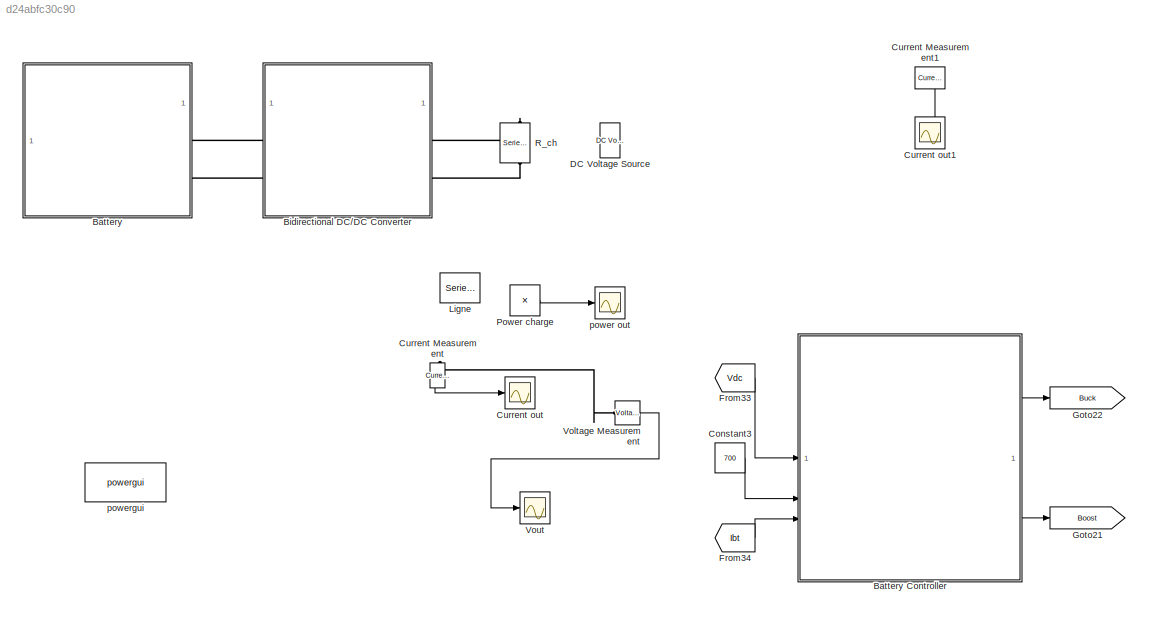
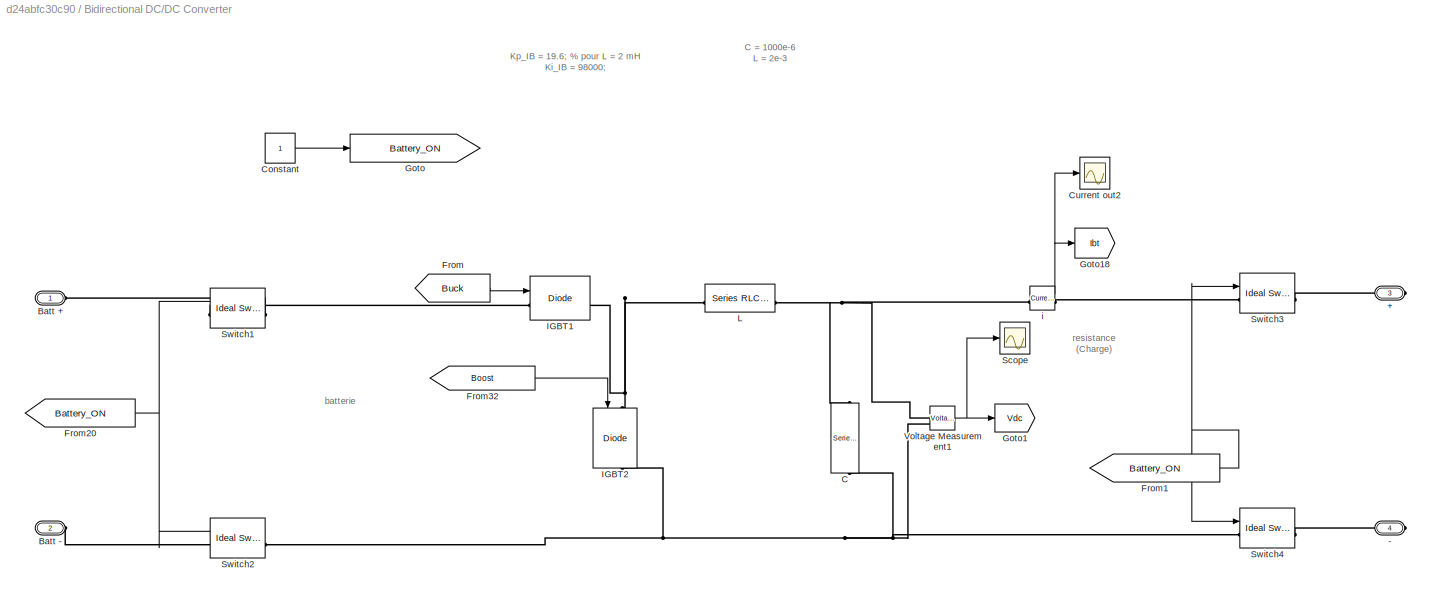
MODEL slx_d24abfc30c90
KIND model
CONFIG AbsTol = auto
CONFIG EnableMultiTasking = off
CONFIG FixedStep = 1e-6
CONFIG MaxStep = auto
CONFIG MinStep = auto
CONFIG RelTol = 1e-3
CONFIG SampleTimeConstraint = Unconstrained
CONFIG SolverName = FixedStepAuto
CONFIG StartTime = 0.0
CONFIG StopTime = 4
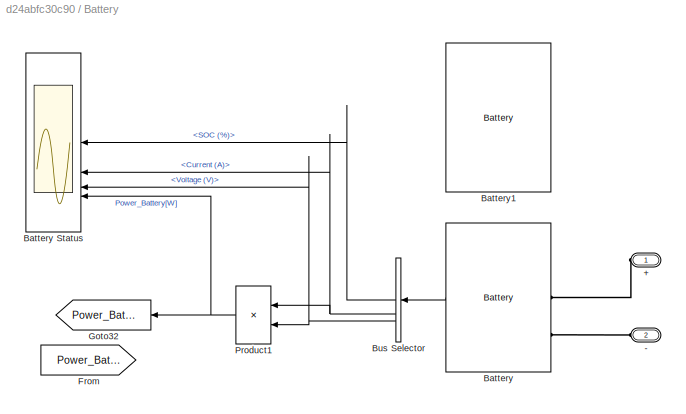
BLOCK [SubSystem] Battery
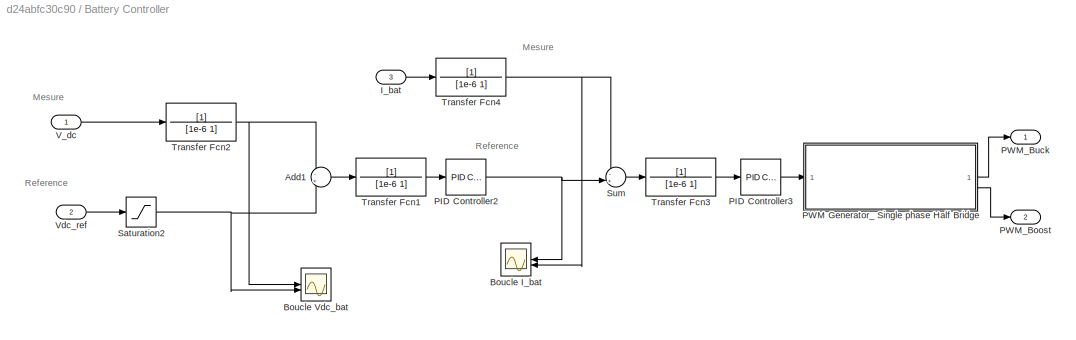
BLOCK [SubSystem] Battery Controller
BLOCK [Sum] Battery Controller/Add1
  Inputs = -+
BLOCK [Scope] Battery Controller/Boucle I_bat
  Floating = off
  NumInputPorts = 2
  ScopeSpecificationString = Simulink.scopes.TimeScopeBlockCfg('CurrentConfiguration', extmgr.ConfigurationSet(extmgr.Configuration('Core','General UI',true,'FigureColor',[1 1 1]),extmgr.Configuration('Core','Source UI',true),extmgr.Configuration('Sources','WiredSimulink',true,'DataLoggingVariableName','ScopeData3'),extmgr.Configuration('Visuals','Time Domain',true,'SerializedDisplays',{struct('MinYLimReal','-439.00246','MaxY...<+1709ch>
BLOCK [Scope] Battery Controller/Boucle Vdc_bat
  Floating = off
  NameLocation = top
  NumInputPorts = 2
  ScopeSpecificationString = Simulink.scopes.TimeScopeBlockCfg('CurrentConfiguration', extmgr.ConfigurationSet(extmgr.Configuration('Core','General UI',true,'FigureColor',[1 1 1]),extmgr.Configuration('Core','Source UI',true),extmgr.Configuration('Sources','WiredSimulink',true,'DataLoggingVariableName','ScopeData2'),extmgr.Configuration('Visuals','Time Domain',true,'SerializedDisplays',{struct('MinYLimReal','-93.93242','MaxYL...<+1701ch>
BLOCK [Inport] Battery Controller/I_bat
  Port = 3
BLOCK [Reference] Battery Controller/PID Controller2  REF=slpidlib/PID Controller
  SourceBlock = slpidlib/PID Controller
  SourceType = PID 1dof
BLOCK [Reference] Battery Controller/PID Controller3  REF=slpidlib/PID Controller
  SourceBlock = slpidlib/PID Controller
  SourceType = PID 1dof
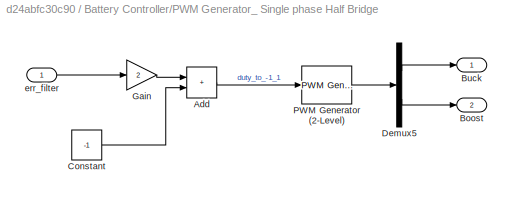
BLOCK [SubSystem] Battery Controller/PWM Generator_ Single phase Half Bridge
BLOCK [Sum] Battery Controller/PWM Generator_ Single phase Half Bridge/Add
  IconShape = rectangular
BLOCK [Outport] Battery Controller/PWM Generator_ Single phase Half Bridge/Boost
  Port = 2
BLOCK [Outport] Battery Controller/PWM Generator_ Single phase Half Bridge/Buck
BLOCK [Constant] Battery Controller/PWM Generator_ Single phase Half Bridge/Constant
  Value = -1
BLOCK [Demux] Battery Controller/PWM Generator_ Single phase Half Bridge/Demux5
  Outputs = 2
BLOCK [Gain] Battery Controller/PWM Generator_ Single phase Half Bridge/Gain
  Gain = 2
BLOCK [Reference] Battery Controller/PWM Generator_ Single phase Half Bridge/PWM Generator (2-Level)  REF=spsPWMGenerator2LevelLib/PWM Generator
(2-Level)
  LibrarySourceBlock = sps_lib/Power Electronics/Power Electronics Control/PWM Generator\n(2-Level)
  SourceBlock = spsPWMGenerator2LevelLib/PWM Generator\n(2-Level)
  SourceType = PWM Generator (2-Level)
BLOCK [Inport] Battery Controller/PWM Generator_ Single phase Half Bridge/err_filter
BLOCK [Outport] Battery Controller/PWM_Boost
  InitialOutput = 0
  OutputWhenDisabled = reset
  Port = 2
  VectorParamsAs1DForOutWhenUnconnected = off
BLOCK [Outport] Battery Controller/PWM_Buck
  InitialOutput = 0
  NameLocation = top
  OutputWhenDisabled = reset
  VectorParamsAs1DForOutWhenUnconnected = off
BLOCK [Saturate] Battery Controller/Saturation2
  LowerLimit = 0
  UpperLimit = 700
BLOCK [Sum] Battery Controller/Sum
  Inputs = -+|
  NameLocation = top
BLOCK [TransferFcn] Battery Controller/Transfer Fcn1
  Denominator = [1e-6 1]
BLOCK [TransferFcn] Battery Controller/Transfer Fcn2
  Denominator = [1e-6 1]
BLOCK [TransferFcn] Battery Controller/Transfer Fcn3
  Denominator = [1e-6 1]
BLOCK [TransferFcn] Battery Controller/Transfer Fcn4
  Denominator = [1e-6 1]
BLOCK [Inport] Battery Controller/V_dc
BLOCK [Inport] Battery Controller/Vdc_ref
  Port = 2
BLOCK [PMIOPort] Battery/+
  NameLocation = top
  Side = Left
BLOCK [PMIOPort] Battery/-
  NameLocation = top
  Port = 2
  Side = Left
BLOCK [Reference] Battery/Battery  REF=spsBatteryLib/Battery
  LibrarySourceBlock = electricdrivelib/Extra Sources/Battery
  NameLocation = top
  SourceBlock = spsBatteryLib/Battery
  SourceType = Battery
BLOCK [Scope] Battery/Battery Status
  Floating = off
  NumInputPorts = 4
  ScopeSpecificationString = Simulink.scopes.TimeScopeBlockCfg('CurrentConfiguration', extmgr.ConfigurationSet(extmgr.Configuration('Core','General UI',true,'FigureColor',[1 1 1]),extmgr.Configuration('Core','Source UI',true),extmgr.Configuration('Sources','WiredSimulink',true,'DataLoggingVariableName','ScopeData4','DataLoggingSaveFormat','Array','DataLoggingDecimation','1'),extmgr.Configuration('Visuals','Time Domain',true,'...<+4047ch>
BLOCK [Reference] Battery/Battery1  REF=spsBatteryLib/Battery
  LibrarySourceBlock = electricdrivelib/Extra Sources/Battery
  NameLocation = top
  SourceBlock = spsBatteryLib/Battery
  SourceType = Battery
BLOCK [BusSelector] Battery/Bus Selector
  NameLocation = top
  OutputSignals = SOC (%),Current (A),Voltage (V)
BLOCK [From] Battery/From
  GotoTag = Power_Battery
  TagVisibility = global
BLOCK [Goto] Battery/Goto32
  GotoTag = Power_Battery
  TagVisibility = global
BLOCK [Product] Battery/Product1
  NameLocation = top
  RndMeth = Zero
BLOCK [SubSystem] Bidirectional DC//DC Converter
  ShowPortLabels = none
BLOCK [PMIOPort] Bidirectional DC//DC Converter/+
  Port = 3
  Side = Right
BLOCK [PMIOPort] Bidirectional DC//DC Converter/-
  Port = 4
  Side = Right
BLOCK [PMIOPort] Bidirectional DC//DC Converter/Batt +
  Side = Left
BLOCK [PMIOPort] Bidirectional DC//DC Converter/Batt -
  Port = 2
  Side = Left
BLOCK [Reference] Bidirectional DC//DC Converter/C  REF=spsSeriesRLCBranchLib/Series RLC Branch
  LibrarySourceBlock = sps_lib/Passives/Series RLC Branch
  NameLocation = left
  SourceBlock = spsSeriesRLCBranchLib/Series RLC Branch
  SourceType = Series RLC Branch
BLOCK [Constant] Bidirectional DC//DC Converter/Constant
BLOCK [Scope] Bidirectional DC//DC Converter/Current out2
  Floating = off
  NameLocation = right
  NumInputPorts = 1
  ScopeSpecificationString = Simulink.scopes.TimeScopeBlockCfg('CurrentConfiguration', extmgr.ConfigurationSet(extmgr.Configuration('Core','General UI',true),extmgr.Configuration('Core','Source UI',true),extmgr.Configuration('Sources','WiredSimulink',true,'DataLoggingVariableName','ScopeData6'),extmgr.Configuration('Visuals','Time Domain',true,'SerializedDisplays',{struct('MinYLimReal','-351.27118','MaxYLimReal','39.0301','YL...<+1556ch>
BLOCK [From] Bidirectional DC//DC Converter/From
  GotoTag = Buck
  TagVisibility = global
BLOCK [From] Bidirectional DC//DC Converter/From1
  GotoTag = Battery_ON
  TagVisibility = global
BLOCK [From] Bidirectional DC//DC Converter/From20
  GotoTag = Battery_ON
  TagVisibility = global
BLOCK [From] Bidirectional DC//DC Converter/From32
  GotoTag = Boost
  TagVisibility = global
BLOCK [Goto] Bidirectional DC//DC Converter/Goto
  GotoTag = Battery_ON
  TagVisibility = global
BLOCK [Goto] Bidirectional DC//DC Converter/Goto1
  GotoTag = Vdc
  TagVisibility = global
BLOCK [Goto] Bidirectional DC//DC Converter/Goto18
  GotoTag = Ibt
  TagVisibility = global
BLOCK [Reference] Bidirectional DC//DC Converter/IGBT1  REF=spsIGBTDiodeLib/IGBT//Diode
  LibrarySourceBlock = sps_lib/Power Electronics/IGBT//Diode
  SourceBlock = spsIGBTDiodeLib/IGBT//Diode
  SourceType = IGBT/Diode
BLOCK [Reference] Bidirectional DC//DC Converter/IGBT2  REF=spsIGBTDiodeLib/IGBT//Diode
  LibrarySourceBlock = sps_lib/Power Electronics/IGBT//Diode
  NameLocation = right
  SourceBlock = spsIGBTDiodeLib/IGBT//Diode
  SourceType = IGBT/Diode
BLOCK [Reference] Bidirectional DC//DC Converter/L  REF=spsSeriesRLCBranchLib/Series RLC Branch
  LibrarySourceBlock = sps_lib/Passives/Series RLC Branch
  NameLocation = top
  SourceBlock = spsSeriesRLCBranchLib/Series RLC Branch
  SourceType = Series RLC Branch
BLOCK [Scope] Bidirectional DC//DC Converter/Scope
  Floating = off
  NumInputPorts = 1
  ScopeSpecificationString = Simulink.scopes.TimeScopeBlockCfg('CurrentConfiguration', extmgr.ConfigurationSet(extmgr.Configuration('Core','General UI',true),extmgr.Configuration('Core','Source UI',true),extmgr.Configuration('Sources','WiredSimulink',true,'DataLoggingVariableName','ScopeData1'),extmgr.Configuration('Visuals','Time Domain',true,'SerializedDisplays',{struct('MinYLimReal','693.18943','MaxYLimReal','757.93379','Y...<+1482ch>
BLOCK [Reference] Bidirectional DC//DC Converter/Switch1  REF=spsIdealSwitchLib/Ideal Switch
  LibrarySourceBlock = sps_lib/Power Electronics/Ideal Switch
  NameLocation = top
  SourceBlock = spsIdealSwitchLib/Ideal Switch
  SourceType = Ideal Switch
BLOCK [Reference] Bidirectional DC//DC Converter/Switch2  REF=spsIdealSwitchLib/Ideal Switch
  LibrarySourceBlock = sps_lib/Power Electronics/Ideal Switch
  NameLocation = top
  SourceBlock = spsIdealSwitchLib/Ideal Switch
  SourceType = Ideal Switch
BLOCK [Reference] Bidirectional DC//DC Converter/Switch3  REF=spsIdealSwitchLib/Ideal Switch
  LibrarySourceBlock = sps_lib/Power Electronics/Ideal Switch
  NameLocation = top
  SourceBlock = spsIdealSwitchLib/Ideal Switch
  SourceType = Ideal Switch
BLOCK [Reference] Bidirectional DC//DC Converter/Switch4  REF=spsIdealSwitchLib/Ideal Switch
  LibrarySourceBlock = sps_lib/Power Electronics/Ideal Switch
  NameLocation = top
  SourceBlock = spsIdealSwitchLib/Ideal Switch
  SourceType = Ideal Switch
BLOCK [Reference] Bidirectional DC//DC Converter/Voltage Measurement1  REF=spsVoltageMeasurementLib/Voltage Measurement
  LibrarySourceBlock = sps_lib/Sensors and Measurements/Voltage Measurement
  SourceBlock = spsVoltageMeasurementLib/Voltage Measurement
  SourceType = Voltage Measurement
  UserDataPersistent = on
BLOCK [Reference] Bidirectional DC//DC Converter/i  REF=spsCurrentMeasurementLib/Current Measurement
  LibrarySourceBlock = sps_lib/Sensors and Measurements/Current Measurement
  SourceBlock = spsCurrentMeasurementLib/Current Measurement
  SourceType = Current Measurement
BLOCK [Constant] Constant3
  Value = 700
BLOCK [Reference] Current Measurement  REF=spsCurrentMeasurementLib/Current Measurement
  LibrarySourceBlock = sps_lib/Sensors and Measurements/Current Measurement
  NameLocation = left
  SourceBlock = spsCurrentMeasurementLib/Current Measurement
  SourceType = Current Measurement
  UserDataPersistent = on
BLOCK [Reference] Current Measurement1  REF=spsCurrentMeasurementLib/Current Measurement
  LibrarySourceBlock = sps_lib/Sensors and Measurements/Current Measurement
  NameLocation = top
  SourceBlock = spsCurrentMeasurementLib/Current Measurement
  SourceType = Current Measurement
  UserDataPersistent = on
BLOCK [Scope] Current out
  Floating = off
  NameLocation = right
  NumInputPorts = 1
  ScopeSpecificationString = Simulink.scopes.TimeScopeBlockCfg('CurrentConfiguration', extmgr.ConfigurationSet(extmgr.Configuration('Core','General UI',true),extmgr.Configuration('Core','Source UI',true),extmgr.Configuration('Sources','WiredSimulink',true,'DataLoggingVariableName','ScopeData1'),extmgr.Configuration('Visuals','Time Domain',true,'SerializedDisplays',{struct('MinYLimReal','4.28571','MaxYLimReal','24.28571','YLab...<+1601ch>
BLOCK [Scope] Current out1
  Floating = off
  NameLocation = right
  NumInputPorts = 1
  ScopeSpecificationString = Simulink.scopes.TimeScopeBlockCfg('CurrentConfiguration', extmgr.ConfigurationSet(extmgr.Configuration('Core','General UI',true),extmgr.Configuration('Core','Source UI',true),extmgr.Configuration('Sources','WiredSimulink',true,'DataLoggingVariableName','ScopeData5'),extmgr.Configuration('Visuals','Time Domain',true,'SerializedDisplays',{struct('MinYLimReal','-105.40599','MaxYLimReal','32.18669','Y...<+1577ch>
BLOCK [Reference] DC Voltage Source  REF=spsDCVoltageSourceLib/DC Voltage Source
  LibrarySourceBlock = sps_lib/Sources/DC Voltage Source
  NameLocation = right
  SourceBlock = spsDCVoltageSourceLib/DC Voltage Source
  SourceType = DC Voltage Source
BLOCK [From] From33
  GotoTag = Vdc
  TagVisibility = global
BLOCK [From] From34
  GotoTag = Ibt
  TagVisibility = global
BLOCK [Goto] Goto21
  GotoTag = Boost
  TagVisibility = global
BLOCK [Goto] Goto22
  GotoTag = Buck
  TagVisibility = global
BLOCK [Reference] Ligne  REF=spsSeriesRLCBranchLib/Series RLC Branch
  LibrarySourceBlock = sps_lib/Passives/Series RLC Branch
  NameLocation = top
  SourceBlock = spsSeriesRLCBranchLib/Series RLC Branch
  SourceType = Series RLC Branch
BLOCK [Product] Power charge
BLOCK [Reference] R_ch  REF=spsSeriesRLCBranchLib/Series RLC Branch
  LibrarySourceBlock = sps_lib/Passives/Series RLC Branch
  NameLocation = left
  SourceBlock = spsSeriesRLCBranchLib/Series RLC Branch
  SourceType = Series RLC Branch
BLOCK [Reference] Voltage Measurement  REF=spsVoltageMeasurementLib/Voltage Measurement
  LibrarySourceBlock = sps_lib/Sensors and Measurements/Voltage Measurement
  SourceBlock = spsVoltageMeasurementLib/Voltage Measurement
  SourceType = Voltage Measurement
  UserDataPersistent = on
BLOCK [Scope] Vout
  Floating = off
  NumInputPorts = 1
  ScopeSpecificationString = Simulink.scopes.TimeScopeBlockCfg('CurrentConfiguration', extmgr.ConfigurationSet(extmgr.Configuration('Core','General UI',true),extmgr.Configuration('Core','Source UI',true),extmgr.Configuration('Sources','WiredSimulink',true,'DataLoggingVariableName','ScopeData1'),extmgr.Configuration('Visuals','Time Domain',true,'SerializedDisplays',{struct('MinYLimReal','600.00000','MaxYLimReal','800.00000','Y...<+1587ch>
BLOCK [Scope] power out 
  Floating = off
  NumInputPorts = 1
  ScopeSpecificationString = Simulink.scopes.TimeScopeBlockCfg('CurrentConfiguration', extmgr.ConfigurationSet(extmgr.Configuration('Core','General UI',true),extmgr.Configuration('Core','Source UI',true),extmgr.Configuration('Sources','WiredSimulink',true,'DataLoggingVariableName','ScopeData2'),extmgr.Configuration('Visuals','Time Domain',true,'SerializedDisplays',{struct('MinYLimReal','-34421.2321','MaxYLimReal','309791.0889...<+1594ch>
BLOCK [Reference] powergui  REF=spspowerguiLib/powergui
  LibrarySourceBlock = sps_lib/powergui
  Priority = 1
  SourceBlock = spspowerguiLib/powergui
  SourceType = PSB option menu block
ANNOTATION Battery Controller: Reference
ANNOTATION Battery Controller: Mesure
ANNOTATION Bidirectional DC//DC Converter: C = 1000e-6 L = 2e-3
ANNOTATION Bidirectional DC//DC Converter: batterie
ANNOTATION Bidirectional DC//DC Converter: resistance (Charge)
ANNOTATION Bidirectional DC//DC Converter: Kp_IB = 19.6; % pour L = 2 mH Ki_IB = 98000;
LINE Battery Controller/Add1:1 -> Battery Controller/Transfer Fcn1:1
LINE Battery Controller/I_bat:1 -> Battery Controller/Transfer Fcn4:1
NET Battery Controller/PID Controller2:1 -> Battery Controller/Boucle I_bat:1, Battery Controller/Sum:2
LINE Battery Controller/PID Controller3:1 -> Battery Controller/PWM Generator_ Single phase Half Bridge:1
LINE Battery Controller/PWM Generator_ Single phase Half Bridge/Add:1 -> Battery Controller/PWM Generator_ Single phase Half Bridge/PWM Generator (2-Level):1
LINE Battery Controller/PWM Generator_ Single phase Half Bridge/Constant:1 -> Battery Controller/PWM Generator_ Single phase Half Bridge/Add:2
LINE Battery Controller/PWM Generator_ Single phase Half Bridge/Demux5:1 -> Battery Controller/PWM Generator_ Single phase Half Bridge/Buck:1
LINE Battery Controller/PWM Generator_ Single phase Half Bridge/Demux5:2 -> Battery Controller/PWM Generator_ Single phase Half Bridge/Boost:1
LINE Battery Controller/PWM Generator_ Single phase Half Bridge/Gain:1 -> Battery Controller/PWM Generator_ Single phase Half Bridge/Add:1
LINE Battery Controller/PWM Generator_ Single phase Half Bridge/PWM Generator (2-Level):1 -> Battery Controller/PWM Generator_ Single phase Half Bridge/Demux5:1
LINE Battery Controller/PWM Generator_ Single phase Half Bridge/err_filter:1 -> Battery Controller/PWM Generator_ Single phase Half Bridge/Gain:1
LINE Battery Controller/PWM Generator_ Single phase Half Bridge:1 -> Battery Controller/PWM_Buck:1
LINE Battery Controller/PWM Generator_ Single phase Half Bridge:2 -> Battery Controller/PWM_Boost:1
NET Battery Controller/Saturation2:1 -> Battery Controller/Add1:2, Battery Controller/Boucle Vdc_bat:2
LINE Battery Controller/Sum:1 -> Battery Controller/Transfer Fcn3:1
LINE Battery Controller/Transfer Fcn1:1 -> Battery Controller/PID Controller2:1
NET Battery Controller/Transfer Fcn2:1 -> Battery Controller/Add1:1, Battery Controller/Boucle Vdc_bat:1
LINE Battery Controller/Transfer Fcn3:1 -> Battery Controller/PID Controller3:1
NET Battery Controller/Transfer Fcn4:1 -> Battery Controller/Boucle I_bat:2, Battery Controller/Sum:1
LINE Battery Controller/V_dc:1 -> Battery Controller/Transfer Fcn2:1
LINE Battery Controller/Vdc_ref:1 -> Battery Controller/Saturation2:1
LINE Battery Controller:1 -> Goto22:1
LINE Battery Controller:2 -> Goto21:1
LINE Battery/Battery:1 -> Battery/Bus Selector:1
LINE Battery/Bus Selector:1 -> Battery/Battery Status:1
NET Battery/Bus Selector:2 -> Battery/Battery Status:2, Battery/Product1:1
NET Battery/Bus Selector:3 -> Battery/Battery Status:3, Battery/Product1:2
NET Battery/Product1:1 -> Battery/Battery Status:4, Battery/Goto32:1
LINE Bidirectional DC//DC Converter/Constant:1 -> Bidirectional DC//DC Converter/Goto:1
NET Bidirectional DC//DC Converter/From1:1 -> Bidirectional DC//DC Converter/Switch3:1, Bidirectional DC//DC Converter/Switch4:1
NET Bidirectional DC//DC Converter/From20:1 -> Bidirectional DC//DC Converter/Switch1:1, Bidirectional DC//DC Converter/Switch2:1
LINE Bidirectional DC//DC Converter/From32:1 -> Bidirectional DC//DC Converter/IGBT2:1
LINE Bidirectional DC//DC Converter/From:1 -> Bidirectional DC//DC Converter/IGBT1:1
NET Bidirectional DC//DC Converter/Voltage Measurement1:1 -> Bidirectional DC//DC Converter/Goto1:1, Bidirectional DC//DC Converter/Scope:1
NET Bidirectional DC//DC Converter/i:1 -> Bidirectional DC//DC Converter/Current out2:1, Bidirectional DC//DC Converter/Goto18:1
LINE Constant3:1 -> Battery Controller:2
LINE Current Measurement1:1 -> Current out1:1
LINE Current Measurement:1 -> Current out:1
LINE From33:1 -> Battery Controller:1
LINE From34:1 -> Battery Controller:3
LINE Power charge:1 -> power out :1
LINE Voltage Measurement:1 -> Vout:1
PLINE Battery/+:RConn1 -- Battery/Battery:LConn1
PLINE Battery/-:RConn1 -- Battery/Battery:LConn2
PLINE Battery:LConn1 -- Bidirectional DC//DC Converter:RConn1
PLINE Battery:LConn2 -- Bidirectional DC//DC Converter:RConn2
PLINE Bidirectional DC//DC Converter/+:RConn1 -- Bidirectional DC//DC Converter/Switch3:RConn1
PLINE Bidirectional DC//DC Converter/-:RConn1 -- Bidirectional DC//DC Converter/Switch4:RConn1
PLINE Bidirectional DC//DC Converter/Batt +:RConn1 -- Bidirectional DC//DC Converter/Switch1:LConn1
PLINE Bidirectional DC//DC Converter/Batt -:RConn1 -- Bidirectional DC//DC Converter/Switch2:LConn1
PNET net1: Bidirectional DC//DC Converter/C:LConn1 -- Bidirectional DC//DC Converter/L:LConn1 -- Bidirectional DC//DC Converter/Voltage Measurement1:LConn1 -- Bidirectional DC//DC Converter/i:LConn1
PNET net2: Bidirectional DC//DC Converter/C:RConn1 -- Bidirectional DC//DC Converter/IGBT2:RConn1 -- Bidirectional DC//DC Converter/Switch2:RConn1 -- Bidirectional DC//DC Converter/Switch4:LConn1 -- Bidirectional DC//DC Converter/Voltage Measurement1:LConn2
PLINE Bidirectional DC//DC Converter/IGBT1:LConn1 -- Bidirectional DC//DC Converter/Switch1:RConn1
PNET net3: Bidirectional DC//DC Converter/IGBT1:RConn1 -- Bidirectional DC//DC Converter/IGBT2:LConn1 -- Bidirectional DC//DC Converter/L:RConn1
PLINE Bidirectional DC//DC Converter/Switch3:LConn1 -- Bidirectional DC//DC Converter/i:RConn1
PLINE Bidirectional DC//DC Converter:LConn1 -- R_ch:LConn1
PLINE Bidirectional DC//DC Converter:LConn2 -- R_ch:RConn1
PLINE Current Measurement:LConn1 -- Voltage Measurement:LConn1
note: NET lines group one-source signal fan-out (src -> all destinations, sorted); 1:1 wires keep LINE; PNET lines group multi-terminal physical nets as a canonical sorted terminal list (undirected conserving connections); 2-terminal nets keep the pairwise PLINE form
